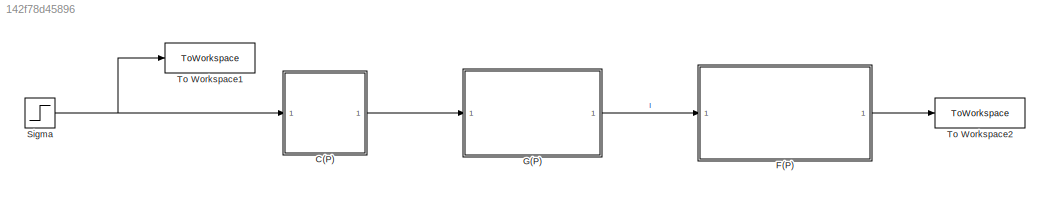
MODEL slx_142f78d45896
KIND model
CONFIG AbsTol = auto
CONFIG EnableMultiTasking = off
CONFIG FixedStep = auto
CONFIG MaxStep = auto
CONFIG MinStep = auto
CONFIG RelTol = 1e-3
CONFIG SampleTimeConstraint = Unconstrained
CONFIG Solver = VariableStepAuto
CONFIG SolverName = VariableStepAuto
CONFIG StartTime = 0.0
CONFIG StopTime = tfinal
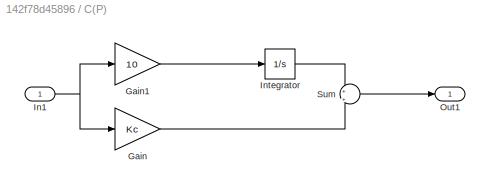
BLOCK [SubSystem] C(P)
  Ports = [1, 1]
  RequestExecContextInheritance = off
BLOCK [Gain] C(P)/Gain
  Gain = Kc
BLOCK [Gain] C(P)/Gain1
  Gain = 10
BLOCK [Inport] C(P)/In1
BLOCK [Integrator] C(P)/Integrator
  Ports = [1, 1]
BLOCK [Outport] C(P)/Out1
BLOCK [Sum] C(P)/Sum
  Inputs = +|+
  Ports = [2, 1]
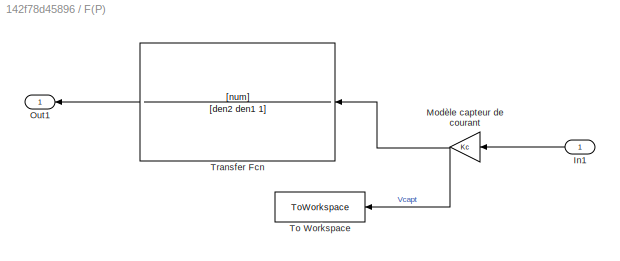
BLOCK [SubSystem] F(P)
  Ports = [1, 1]
  RequestExecContextInheritance = off
BLOCK [Inport] F(P)/In1
  NameLocation = top
BLOCK [Gain] F(P)/Modèle capteur de courant
  Gain = Kc
  NameLocation = top
BLOCK [Outport] F(P)/Out1
BLOCK [ToWorkspace] F(P)/To Workspace
  FixptAsFi = on
  MaxDataPoints = inf
  NameLocation = top
  Ports = [1]
  SampleTime = -1
  SaveFormat = Timeseries
  VariableName = Vcapt
BLOCK [TransferFcn] F(P)/Transfer Fcn
  Denominator = [den2 den1 1]
  NameLocation = top
  Numerator = [num]
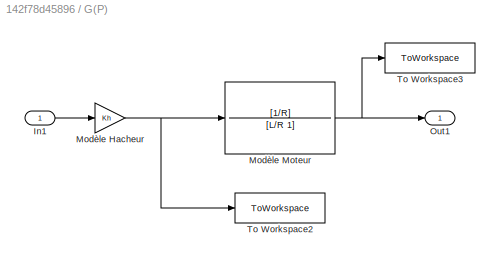
BLOCK [SubSystem] G(P)
  Ports = [1, 1]
  RequestExecContextInheritance = off
BLOCK [Inport] G(P)/In1
BLOCK [Gain] G(P)/Modèle Hacheur
  Gain = Kh
BLOCK [TransferFcn] G(P)/Modèle Moteur
  Denominator = [L/R 1]
  Numerator = [1/R]
BLOCK [Outport] G(P)/Out1
BLOCK [ToWorkspace] G(P)/To Workspace2
  FixptAsFi = on
  MaxDataPoints = inf
  Ports = [1]
  SampleTime = -1
  SaveFormat = Timeseries
  VariableName = Umot
BLOCK [ToWorkspace] G(P)/To Workspace3
  FixptAsFi = on
  MaxDataPoints = inf
  Ports = [1]
  SampleTime = -1
  SaveFormat = Timeseries
  VariableName = I
BLOCK [Step] Sigma
  After = Yc
  SampleTime = 0
  Time = tfinal/8
BLOCK [ToWorkspace] To Workspace1
  FixptAsFi = on
  MaxDataPoints = inf
  Ports = [1]
  SampleTime = -1
  SaveFormat = Timeseries
  VariableName = sigma
BLOCK [ToWorkspace] To Workspace2
  FixptAsFi = on
  MaxDataPoints = inf
  Ports = [1]
  SampleTime = -1
  SaveFormat = Timeseries
  VariableName = Vretour
LINE C(P)/Gain1:1 -> C(P)/Integrator:1
LINE C(P)/Gain:1 -> C(P)/Sum:2
NET C(P)/In1:1 -> C(P)/Gain1:1, C(P)/Gain:1
LINE C(P)/Integrator:1 -> C(P)/Sum:1
LINE C(P)/Sum:1 -> C(P)/Out1:1
LINE C(P):1 -> G(P):1
LINE F(P)/In1:1 -> F(P)/Modèle capteur de courant:1
NET F(P)/Modèle capteur de courant:1 -> F(P)/To Workspace:1, F(P)/Transfer Fcn:1
LINE F(P)/Transfer Fcn:1 -> F(P)/Out1:1
LINE F(P):1 -> To Workspace2:1
LINE G(P)/In1:1 -> G(P)/Modèle Hacheur:1
NET G(P)/Modèle Hacheur:1 -> G(P)/Modèle Moteur:1, G(P)/To Workspace2:1
NET G(P)/Modèle Moteur:1 -> G(P)/Out1:1, G(P)/To Workspace3:1
LINE G(P):1 -> F(P):1
NET Sigma:1 -> C(P):1, To Workspace1:1
note: NET lines group one-source signal fan-out (src -> all destinations, sorted); 1:1 wires keep LINE
